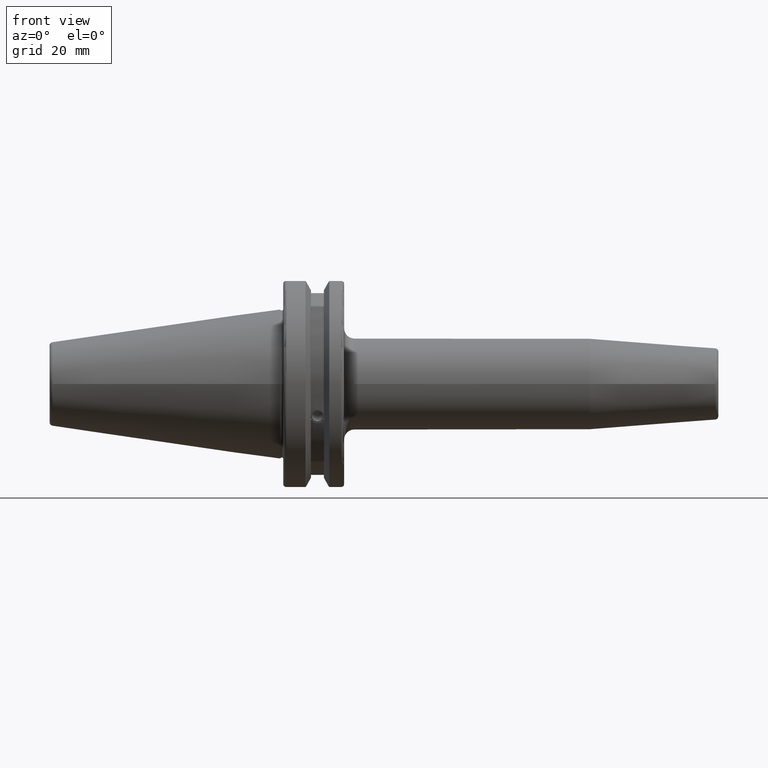
[diagram: clean part render]
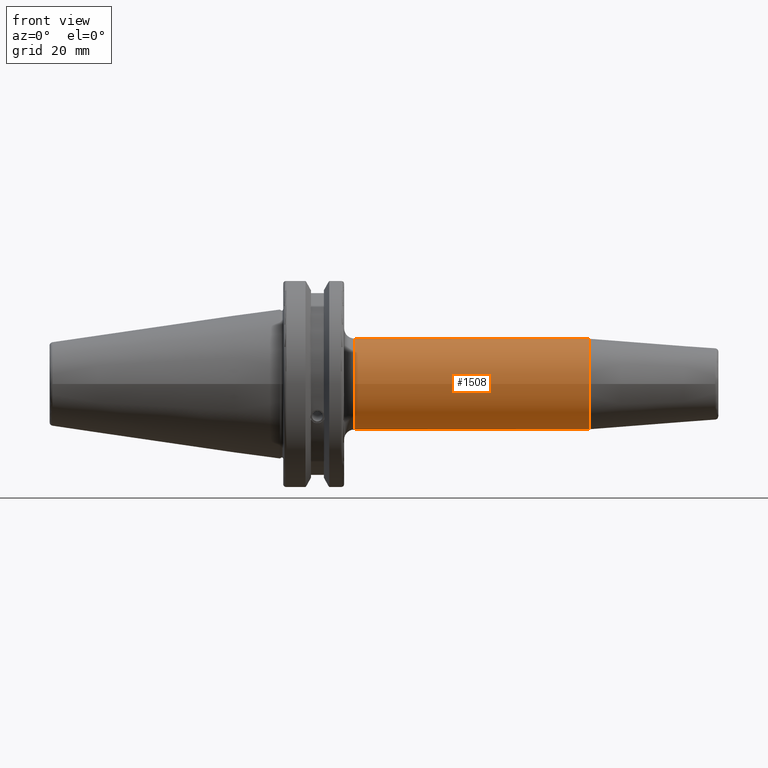
[diagram: same view with one face highlighted and labeled with its STEP entity id]
A machine part, front view. The second image highlights one B-rep face of the part: STEP entity #1508.
In plain terms, the highlighted cylindrical surface (bore or boss wall) has radius 13.5 mm, axis along (1, 0, 0).
Its self-contained STEP definition (entity closure, byte-faithful):
#148=CYLINDRICAL_SURFACE('',#1633,13.5);
#183=FACE_OUTER_BOUND('',#274,.T.);
#274=EDGE_LOOP('',(#1051,#1052,#1053,#1054,#1055));
#374=LINE('',#2292,#467);
#467=VECTOR('',#1845,13.5);
#562=CIRCLE('',#1627,13.5);
#563=CIRCLE('',#1629,13.5);
#566=CIRCLE('',#1632,13.5);
#638=VERTEX_POINT('',#2280);
#639=VERTEX_POINT('',#2284);
#640=VERTEX_POINT('',#2285);
#798=EDGE_CURVE('',#638,#638,#562,.T.);
#799=EDGE_CURVE('',#639,#640,#563,.T.);
#802=EDGE_CURVE('',#640,#639,#566,.T.);
#803=EDGE_CURVE('',#638,#639,#374,.T.);
#1051=ORIENTED_EDGE('',*,*,#798,.F.);
#1052=ORIENTED_EDGE('',*,*,#803,.T.);
#1053=ORIENTED_EDGE('',*,*,#802,.F.);
#1054=ORIENTED_EDGE('',*,*,#799,.F.);
#1055=ORIENTED_EDGE('',*,*,#803,.F.);
#1508=ADVANCED_FACE('',(#183),#148,.T.);
#1627=AXIS2_PLACEMENT_3D('',#2282,#1831,#1832);
#1629=AXIS2_PLACEMENT_3D('',#2286,#1835,#1836);
#1632=AXIS2_PLACEMENT_3D('',#2290,#1841,#1842);
#1633=AXIS2_PLACEMENT_3D('',#2291,#1843,#1844);
#1831=DIRECTION('center_axis',(1.,0.,0.));
#1832=DIRECTION('ref_axis',(0.,0.,-1.));
#1835=DIRECTION('center_axis',(-1.,0.,0.));
#1836=DIRECTION('ref_axis',(0.,-1.,-1.22464679914735E-16));
#1841=DIRECTION('center_axis',(-1.,0.,0.));
#1842=DIRECTION('ref_axis',(0.,-1.,-1.22464679914735E-16));
#1843=DIRECTION('center_axis',(1.,0.,0.));
#1844=DIRECTION('ref_axis',(0.,1.,0.));
#1845=DIRECTION('',(-1.,0.,0.));
#2280=CARTESIAN_POINT('',(91.8813857914758,-13.5,-1.65327317884893E-15));
#2282=CARTESIAN_POINT('Origin',(91.8813857914758,0.,0.));
#2284=CARTESIAN_POINT('',(22.05,-13.5,-1.65327317884893E-15));
#2285=CARTESIAN_POINT('',(22.05,-1.65327317884893E-15,-13.5));
#2286=CARTESIAN_POINT('Origin',(22.05,0.,0.));
#2290=CARTESIAN_POINT('Origin',(22.05,0.,0.));
#2291=CARTESIAN_POINT('Origin',(55.4656928957379,0.,0.));
#2292=CARTESIAN_POINT('',(55.4656928957379,-13.5,-1.65327317884893E-15));